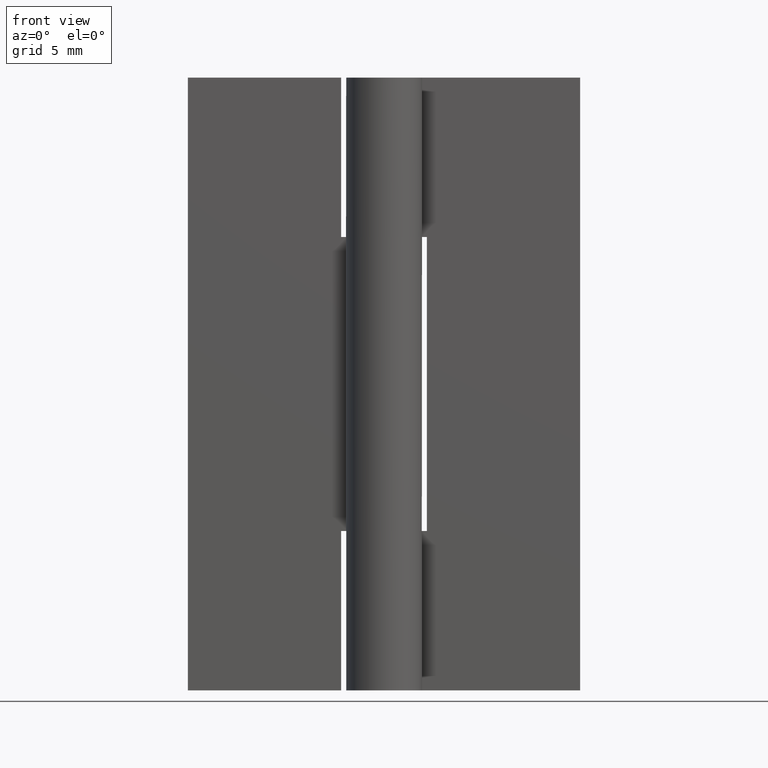
[diagram: clean part render]
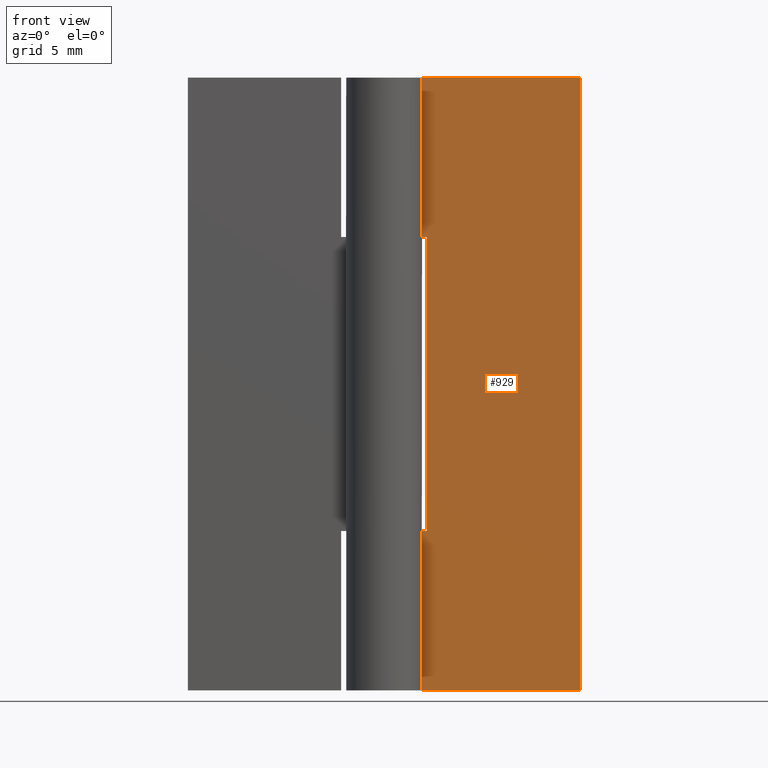
[diagram: same view with one face highlighted and labeled with its STEP entity id]
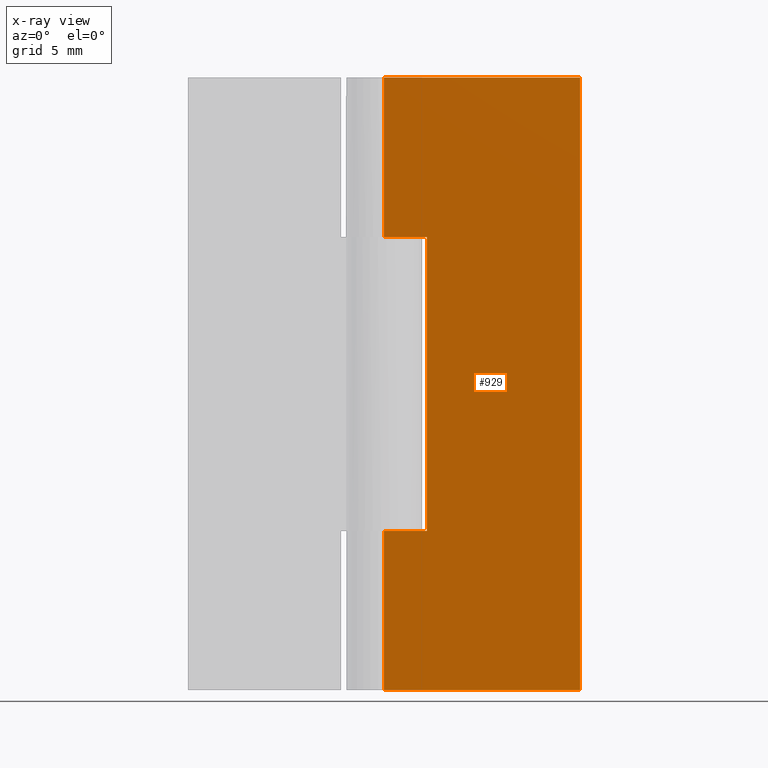
[diagram: x-ray of the same camera — body ghosted, the highlighted face saturated]
A machine part, front view. The second image highlights one B-rep face of the part: STEP entity #929.
The next image is the same camera in x-ray: the body ghosted, the highlighted face saturated — about 0% of this face is hidden behind the body in this view.
In plain terms, the highlighted face is a freeform B-spline surface patch.
Its self-contained STEP definition (entity closure, byte-faithful):
#528=CARTESIAN_POINT('',(3.499999999999901,1.499999999999946,37.0));
#529=VERTEX_POINT('',#528);
#535=CARTESIAN_POINT('',(0.0,1.500000000000000,37.0));
#536=VERTEX_POINT('',#535);
#537=CARTESIAN_POINT('',(0.0,1.500000000000000,37.0));
#538=CARTESIAN_POINT('',(3.499999999999901,1.499999999999946,37.0));
#539=QUASI_UNIFORM_CURVE('',1,(#537,#538),.UNSPECIFIED.,.F.,.U.);
#540=EDGE_CURVE('',#536,#529,#539,.T.);
#627=CARTESIAN_POINT('',(0.0,1.500000000000000,13.0));
#628=VERTEX_POINT('',#627);
#648=CARTESIAN_POINT('',(3.499999999999901,1.499999999999946,13.0));
#649=VERTEX_POINT('',#648);
#650=CARTESIAN_POINT('',(3.499999999999901,1.499999999999946,13.0));
#651=CARTESIAN_POINT('',(0.0,1.500000000000000,13.0));
#652=QUASI_UNIFORM_CURVE('',1,(#650,#651),.UNSPECIFIED.,.F.,.U.);
#653=EDGE_CURVE('',#649,#628,#652,.T.);
#689=CARTESIAN_POINT('',(3.499999999999901,1.499999999999946,37.0));
#690=CARTESIAN_POINT('',(3.499999999999901,1.499999999999946,13.0));
#691=QUASI_UNIFORM_CURVE('',1,(#689,#690),.UNSPECIFIED.,.F.,.U.);
#692=EDGE_CURVE('',#529,#649,#691,.T.);
#732=CARTESIAN_POINT('',(0.0,1.500000000000000,50.0));
#733=VERTEX_POINT('',#732);
#753=CARTESIAN_POINT('',(16.0,1.500000000000000,50.0));
#754=VERTEX_POINT('',#753);
#755=CARTESIAN_POINT('',(16.0,1.500000000000000,50.0));
#756=CARTESIAN_POINT('',(0.0,1.500000000000000,50.0));
#757=QUASI_UNIFORM_CURVE('',1,(#755,#756),.UNSPECIFIED.,.F.,.U.);
#758=EDGE_CURVE('',#754,#733,#757,.T.);
#810=CARTESIAN_POINT('',(16.0,1.500000000000000,0.0));
#811=VERTEX_POINT('',#810);
#817=CARTESIAN_POINT('',(0.0,1.500000000000000,0.0));
#818=VERTEX_POINT('',#817);
#819=CARTESIAN_POINT('',(16.0,1.500000000000000,0.0));
#820=CARTESIAN_POINT('',(0.0,1.500000000000000,0.0));
#821=QUASI_UNIFORM_CURVE('',1,(#819,#820),.UNSPECIFIED.,.F.,.U.);
#822=EDGE_CURVE('',#811,#818,#821,.T.);
#896=CARTESIAN_POINT('',(0.0,1.500000000000000,37.0));
#897=CARTESIAN_POINT('',(0.0,1.500000000000000,50.0));
#898=QUASI_UNIFORM_CURVE('',1,(#896,#897),.UNSPECIFIED.,.F.,.U.);
#899=EDGE_CURVE('',#536,#733,#898,.T.);
#906=CARTESIAN_POINT('',(-0.799199968988895,1.500000000000000,-2.497499903090299));
#907=CARTESIAN_POINT('',(-0.799199968988895,1.500000000000000,52.497501244194808));
#908=CARTESIAN_POINT('',(16.799200398142339,1.500000000000000,-2.497499903090299));
#909=CARTESIAN_POINT('',(16.799200398142339,1.500000000000000,52.497501244194808));
#910=B_SPLINE_SURFACE_WITH_KNOTS('',1,1,((#906,#908),(#907,#909)),.UNSPECIFIED.,.F.,.F.,.U.,(2,2),(2,2),(0.0,54.995001147285109),(0.0,17.598400367131230),.UNSPECIFIED.);
#911=ORIENTED_EDGE('',*,*,#692,.T.);
#912=ORIENTED_EDGE('',*,*,#653,.T.);
#913=CARTESIAN_POINT('',(0.0,1.500000000000000,0.0));
#914=CARTESIAN_POINT('',(0.0,1.500000000000000,13.0));
#915=QUASI_UNIFORM_CURVE('',1,(#913,#914),.UNSPECIFIED.,.F.,.U.);
#916=EDGE_CURVE('',#818,#628,#915,.T.);
#917=ORIENTED_EDGE('',*,*,#916,.F.);
#918=ORIENTED_EDGE('',*,*,#822,.F.);
#919=CARTESIAN_POINT('',(16.0,1.500000000000000,0.0));
#920=CARTESIAN_POINT('',(16.0,1.500000000000000,50.0));
#921=QUASI_UNIFORM_CURVE('',1,(#919,#920),.UNSPECIFIED.,.F.,.U.);
#922=EDGE_CURVE('',#811,#754,#921,.T.);
#923=ORIENTED_EDGE('',*,*,#922,.T.);
#924=ORIENTED_EDGE('',*,*,#758,.T.);
#925=ORIENTED_EDGE('',*,*,#899,.F.);
#926=ORIENTED_EDGE('',*,*,#540,.T.);
#927=EDGE_LOOP('',(#911,#912,#917,#918,#923,#924,#925,#926));
#928=FACE_OUTER_BOUND('',#927,.T.);
#929=ADVANCED_FACE('',(#928),#910,.F.);